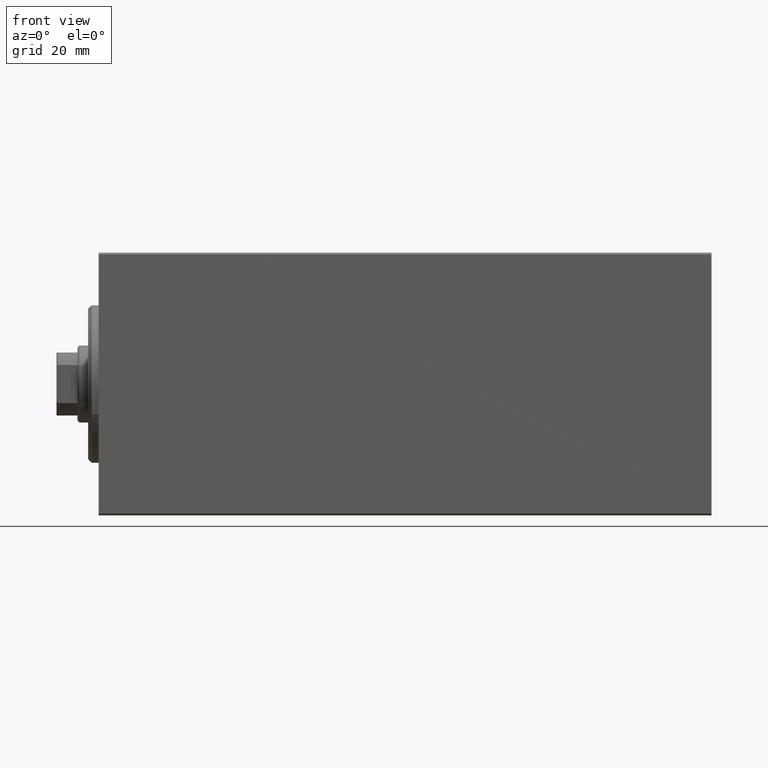
[diagram: clean part render]
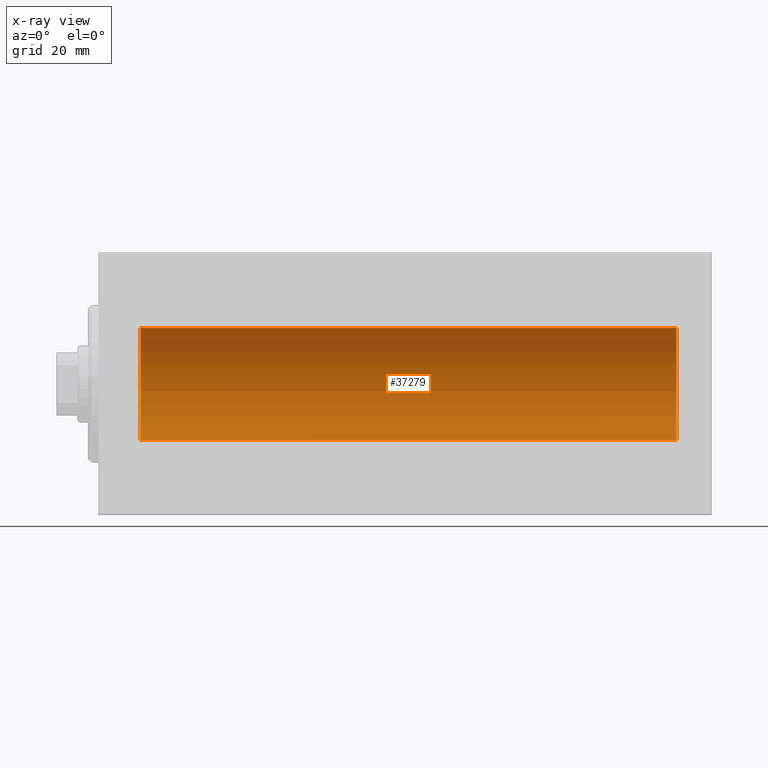
[diagram: x-ray — body ghosted, one internal face saturated and labeled with its STEP entity id]
A machine part, front view, then the same camera in x-ray: the body is ghosted and one INTERNAL B-rep face — a face not visible from any outside direction — is saturated and labeled: STEP entity #37279.
In plain terms, the highlighted cylindrical surface (partial cylindrical patch) has radius 16 mm, axis along (-1, -0, -0).
Its self-contained STEP definition (entity closure, byte-faithful):
#412 = LINE ( 'NONE', #3493, #18266 ) ;
#1495 = CIRCLE ( 'NONE', #4299, 16.00000000000000000 ) ;
#1860 = DIRECTION ( 'NONE',  ( 0.000000000000000000, 0.000000000000000000, 1.000000000000000000 ) ) ;
#2392 = ORIENTED_EDGE ( 'NONE', *, *, #28693, .T. ) ;
#2497 = VECTOR ( 'NONE', #29980, 1000.000000000000000 ) ;
#2742 = ORIENTED_EDGE ( 'NONE', *, *, #7674, .F. ) ;
#3221 = CARTESIAN_POINT ( 'NONE',  ( 165.0000000000000000, 1.959434878635765131E-15, -16.00000000000000000 ) ) ;
#3493 = CARTESIAN_POINT ( 'NONE',  ( 165.0000000000000000, 1.959434878635765131E-15, -16.00000000000000000 ) ) ;
#3834 = EDGE_CURVE ( 'NONE', #4549, #13463, #412, .T. ) ;
#4299 = AXIS2_PLACEMENT_3D ( 'NONE', #38456, #8499, #1860 ) ;
#4549 = VERTEX_POINT ( 'NONE', #3221 ) ;
#6232 = DIRECTION ( 'NONE',  ( 0.000000000000000000, 0.000000000000000000, 1.000000000000000000 ) ) ;
#6894 = CARTESIAN_POINT ( 'NONE',  ( 165.0000000000000000, 0.000000000000000000, 0.000000000000000000 ) ) ;
#7674 = EDGE_CURVE ( 'NONE', #8340, #4549, #1495, .T. ) ;
#8340 = VERTEX_POINT ( 'NONE', #9705 ) ;
#8499 = DIRECTION ( 'NONE',  ( -1.000000000000000000, 0.000000000000000000, 0.000000000000000000 ) ) ;
#9318 = EDGE_CURVE ( 'NONE', #34901, #13463, #18442, .T. ) ;
#9554 = CARTESIAN_POINT ( 'NONE',  ( 12.00000000000001066, 0.000000000000000000, 0.000000000000000000 ) ) ;
#9705 = CARTESIAN_POINT ( 'NONE',  ( 165.0000000000000000, 0.000000000000000000, 16.00000000000000000 ) ) ;
#10431 = FACE_OUTER_BOUND ( 'NONE', #36123, .T. ) ;
#13286 = DIRECTION ( 'NONE',  ( 0.000000000000000000, 0.000000000000000000, 1.000000000000000000 ) ) ;
#13463 = VERTEX_POINT ( 'NONE', #39067 ) ;
#13855 = DIRECTION ( 'NONE',  ( -1.000000000000000000, -0.000000000000000000, -0.000000000000000000 ) ) ;
#13950 = CYLINDRICAL_SURFACE ( 'NONE', #23111, 16.00000000000000000 ) ;
#17222 = ORIENTED_EDGE ( 'NONE', *, *, #9318, .T. ) ;
#17542 = CARTESIAN_POINT ( 'NONE',  ( 12.00000000000001066, 0.000000000000000000, 16.00000000000000000 ) ) ;
#18266 = VECTOR ( 'NONE', #13855, 1000.000000000000000 ) ;
#18442 = CIRCLE ( 'NONE', #37457, 16.00000000000000000 ) ;
#23111 = AXIS2_PLACEMENT_3D ( 'NONE', #6894, #37084, #13286 ) ;
#26240 = CARTESIAN_POINT ( 'NONE',  ( 165.0000000000000000, 0.000000000000000000, 16.00000000000000000 ) ) ;
#28693 = EDGE_CURVE ( 'NONE', #8340, #34901, #31564, .T. ) ;
#29980 = DIRECTION ( 'NONE',  ( -1.000000000000000000, -0.000000000000000000, -0.000000000000000000 ) ) ;
#31564 = LINE ( 'NONE', #26240, #2497 ) ;
#34901 = VERTEX_POINT ( 'NONE', #17542 ) ;
#36123 = EDGE_LOOP ( 'NONE', ( #41126, #2742, #2392, #17222 ) ) ;
#36643 = DIRECTION ( 'NONE',  ( -1.000000000000000000, 0.000000000000000000, 0.000000000000000000 ) ) ;
#37084 = DIRECTION ( 'NONE',  ( -1.000000000000000000, -0.000000000000000000, -0.000000000000000000 ) ) ;
#37279 = ADVANCED_FACE ( 'NONE', ( #10431 ), #13950, .F. ) ;
#37457 = AXIS2_PLACEMENT_3D ( 'NONE', #9554, #36643, #6232 ) ;
#38456 = CARTESIAN_POINT ( 'NONE',  ( 165.0000000000000000, 0.000000000000000000, 0.000000000000000000 ) ) ;
#39067 = CARTESIAN_POINT ( 'NONE',  ( 12.00000000000001066, 1.959434878635765131E-15, -16.00000000000000000 ) ) ;
#41126 = ORIENTED_EDGE ( 'NONE', *, *, #3834, .F. ) ;